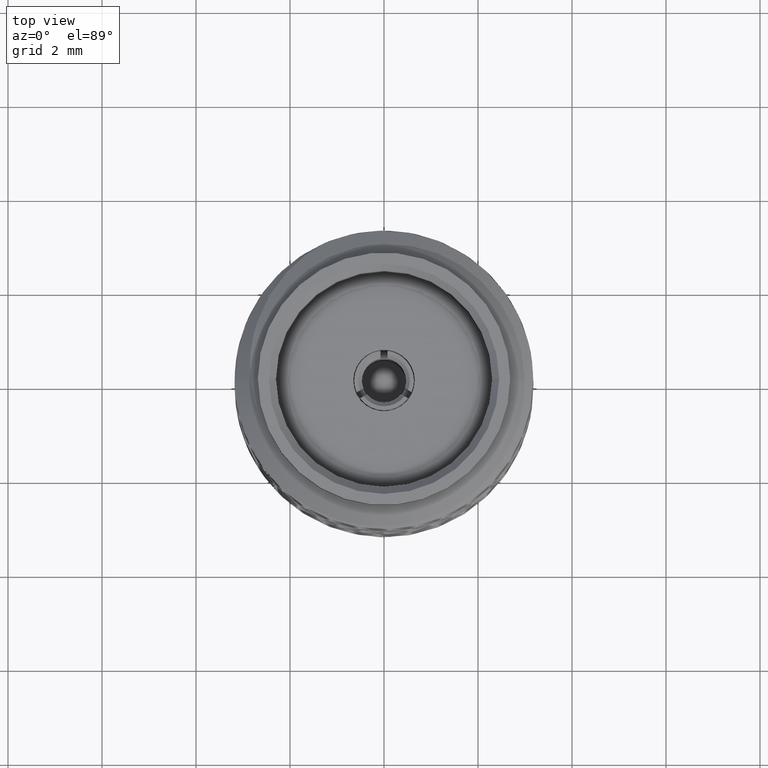
[diagram: clean part render]
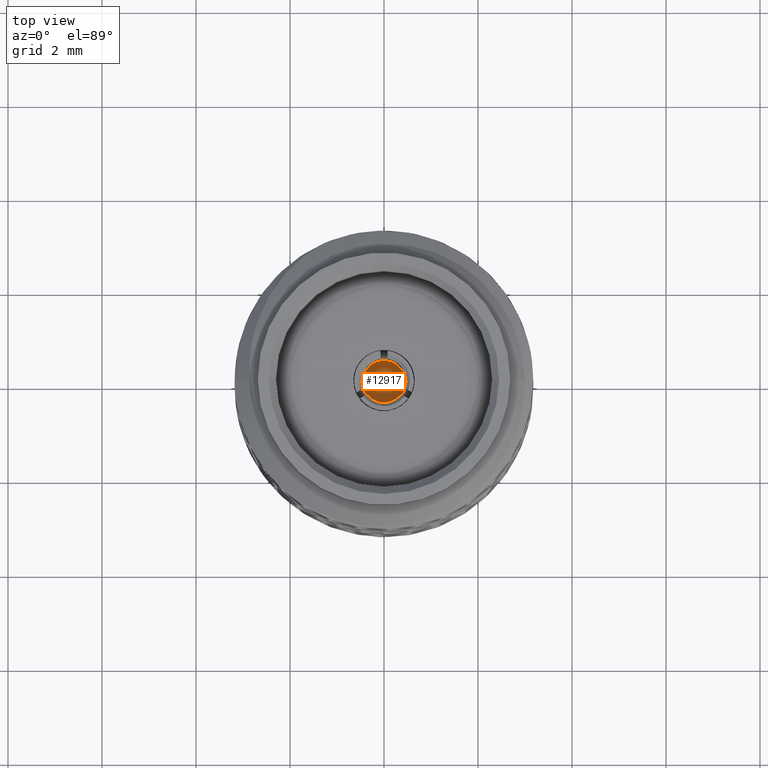
[diagram: same view with one face highlighted and labeled with its STEP entity id]
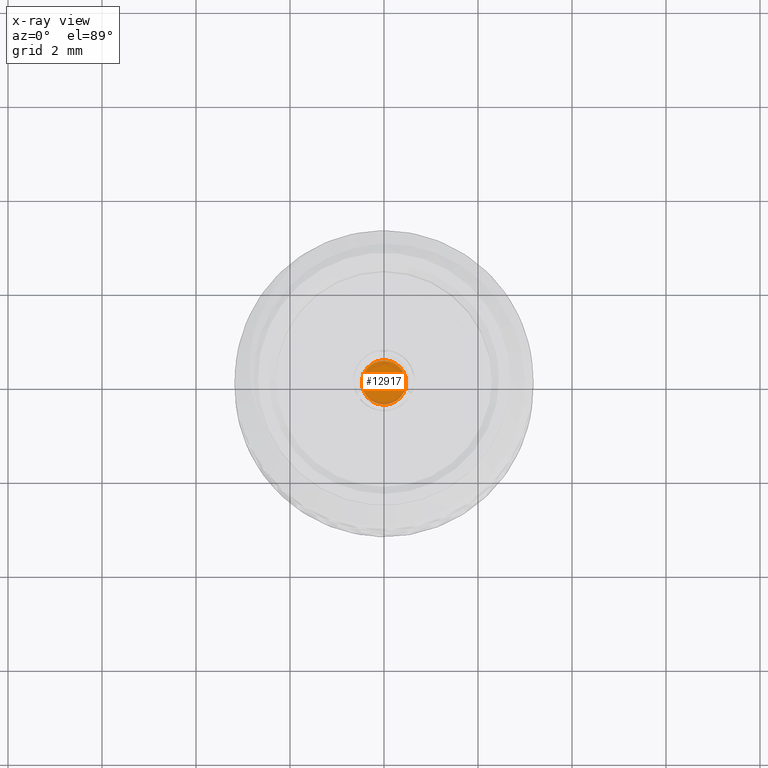
[diagram: x-ray of the same camera — body ghosted, the highlighted face saturated]
A machine part, top view. The second image highlights one B-rep face of the part: STEP entity #12917.
The next image is the same camera in x-ray: the body ghosted, the highlighted face saturated — about 5% of this face is hidden behind the body in this view.
In plain terms, the highlighted planar face has unit normal (0, 0, 1).
Its self-contained STEP definition (entity closure, byte-faithful):
#1720 = VERTEX_POINT ( 'NONE', #4708 ) ;
#2068 = VERTEX_POINT ( 'NONE', #8210 ) ;
#2219 = EDGE_CURVE ( 'NONE', #1720, #2068, #12597, .T. ) ;
#2806 = DIRECTION ( 'NONE',  ( 0.0000000000000000000, 0.0000000000000000000, 1.000000000000000000 ) ) ;
#4228 = DIRECTION ( 'NONE',  ( 0.0000000000000000000, 0.0000000000000000000, 1.000000000000000000 ) ) ;
#4708 = CARTESIAN_POINT ( 'NONE',  ( 0.4699999999999999700, 0.0000000000000000000, 1.620000000000000300 ) ) ;
#5962 = AXIS2_PLACEMENT_3D ( 'NONE', #12640, #7135, #7090 ) ;
#7090 = DIRECTION ( 'NONE',  ( 1.000000000000000000, 0.0000000000000000000, -0.0000000000000000000 ) ) ;
#7135 = DIRECTION ( 'NONE',  ( 0.0000000000000000000, 0.0000000000000000000, 1.000000000000000000 ) ) ;
#7840 = FACE_OUTER_BOUND ( 'NONE', #8611, .T. ) ;
#8210 = CARTESIAN_POINT ( 'NONE',  ( -0.4699999999999999700, 5.755839955992559700E-017, 1.620000000000000300 ) ) ;
#8599 = DIRECTION ( 'NONE',  ( 1.000000000000000000, 0.0000000000000000000, 0.0000000000000000000 ) ) ;
#8611 = EDGE_LOOP ( 'NONE', ( #10079, #13150 ) ) ;
#8691 = CARTESIAN_POINT ( 'NONE',  ( 0.0000000000000000000, 0.0000000000000000000, 1.620000000000000300 ) ) ;
#9314 = CARTESIAN_POINT ( 'NONE',  ( 0.0000000000000000000, 0.0000000000000000000, 1.620000000000000300 ) ) ;
#9625 = AXIS2_PLACEMENT_3D ( 'NONE', #9314, #2806, #10406 ) ;
#9756 = AXIS2_PLACEMENT_3D ( 'NONE', #8691, #4228, #8599 ) ;
#9778 = EDGE_CURVE ( 'NONE', #2068, #1720, #10898, .T. ) ;
#10079 = ORIENTED_EDGE ( 'NONE', *, *, #2219, .T. ) ;
#10406 = DIRECTION ( 'NONE',  ( 1.000000000000000000, 0.0000000000000000000, 0.0000000000000000000 ) ) ;
#10898 = CIRCLE ( 'NONE', #9756, 0.4699999999999999700 ) ;
#12597 = CIRCLE ( 'NONE', #9625, 0.4699999999999999700 ) ;
#12640 = CARTESIAN_POINT ( 'NONE',  ( 0.0000000000000000000, 0.0000000000000000000, 1.620000000000000300 ) ) ;
#12917 = ADVANCED_FACE ( 'NONE', ( #7840 ), #13578, .T. ) ;
#13150 = ORIENTED_EDGE ( 'NONE', *, *, #9778, .T. ) ;
#13578 = PLANE ( 'NONE',  #5962 ) ;